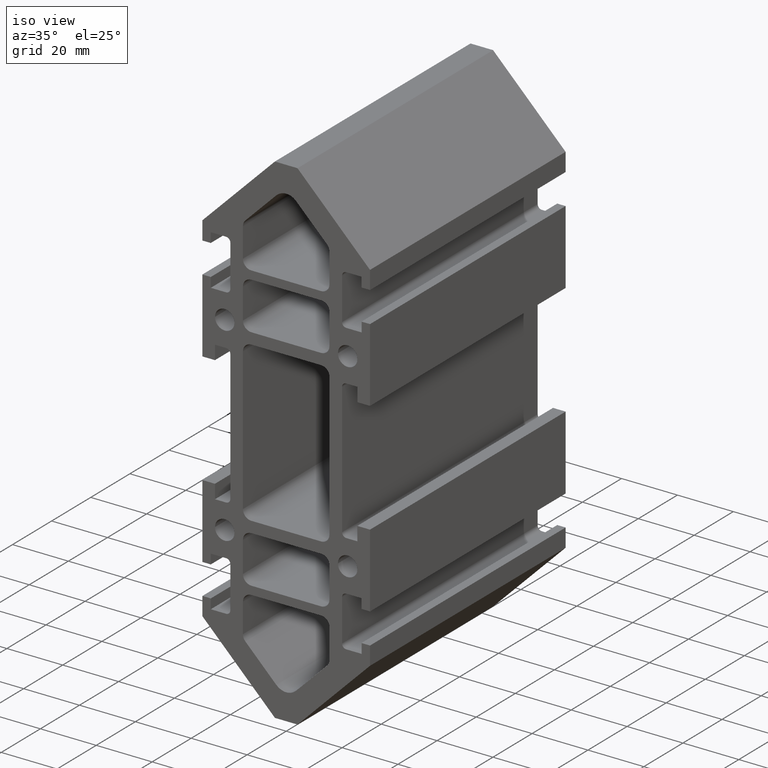
[diagram: clean part render]
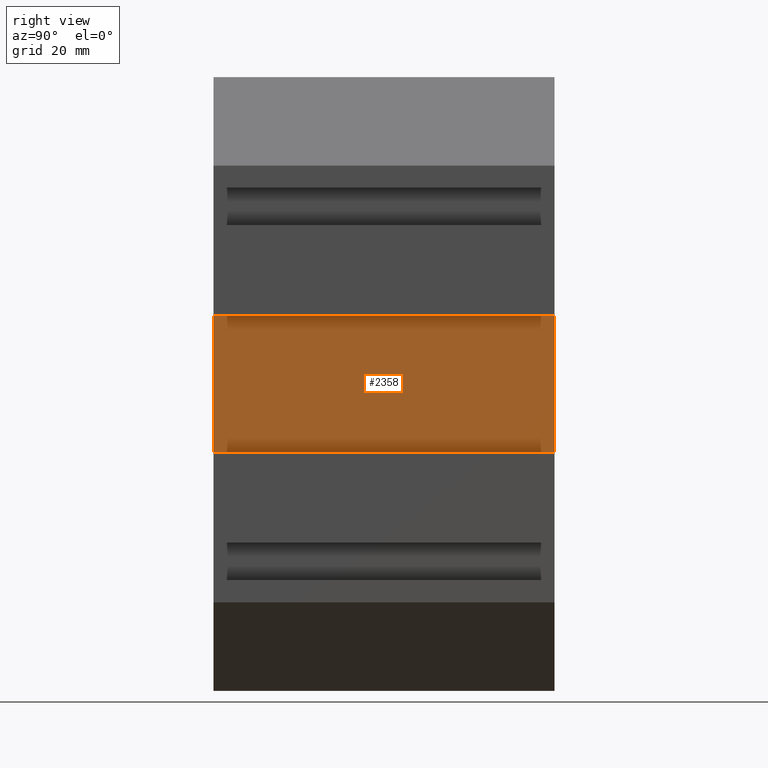
[diagram: tour spotlight — one face highlighted and labeled with its STEP entity id]
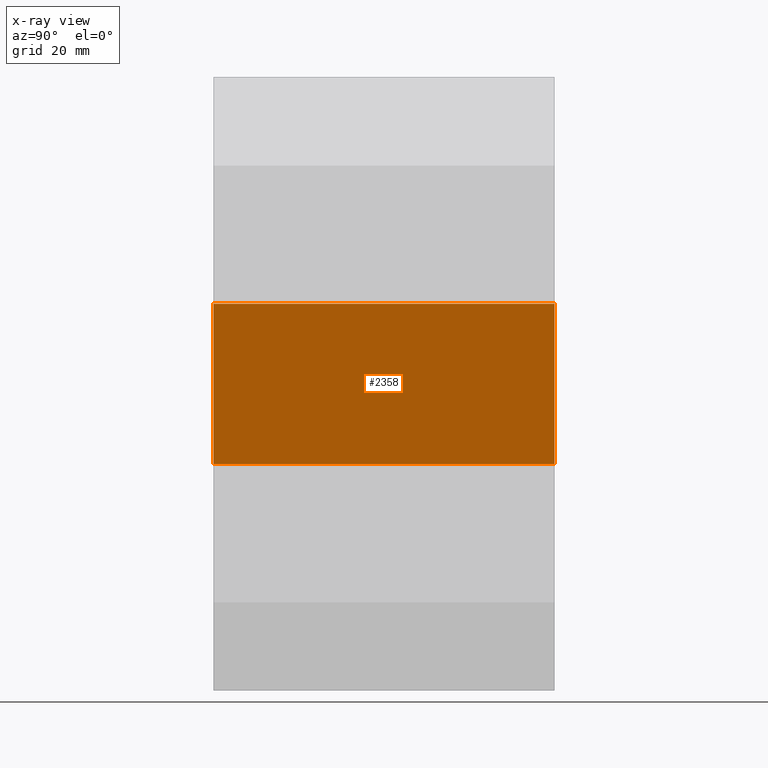
[diagram: x-ray of the same camera — body ghosted, this tour face saturated]
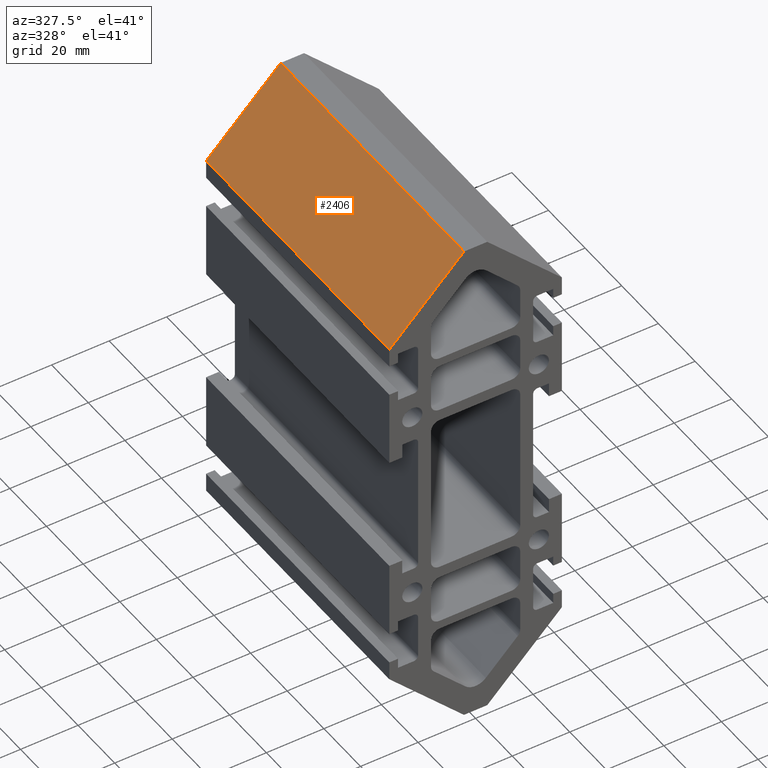
[diagram: tour spotlight — one face highlighted and labeled with its STEP entity id]
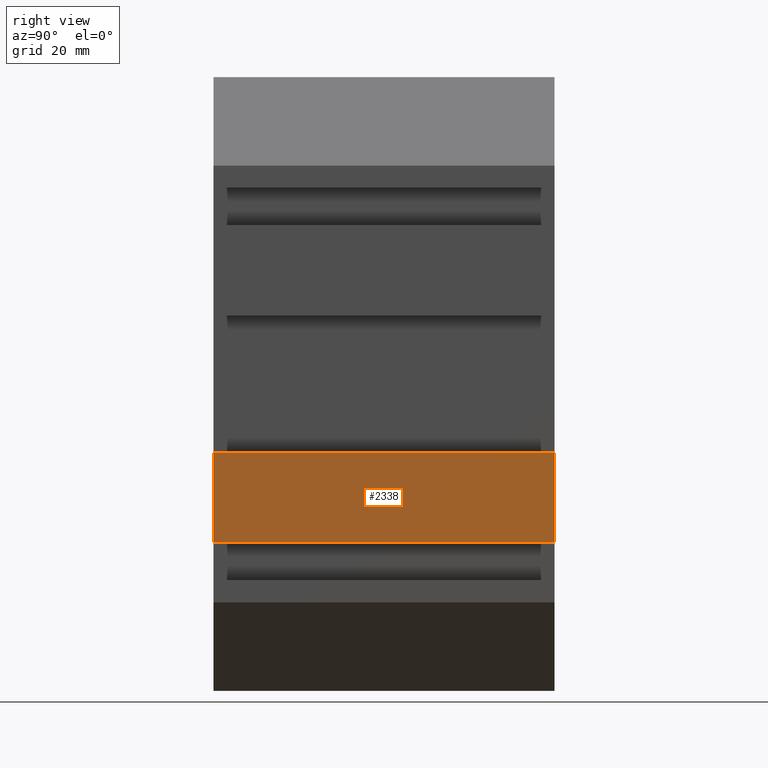
[diagram: tour spotlight — one face highlighted and labeled with its STEP entity id]
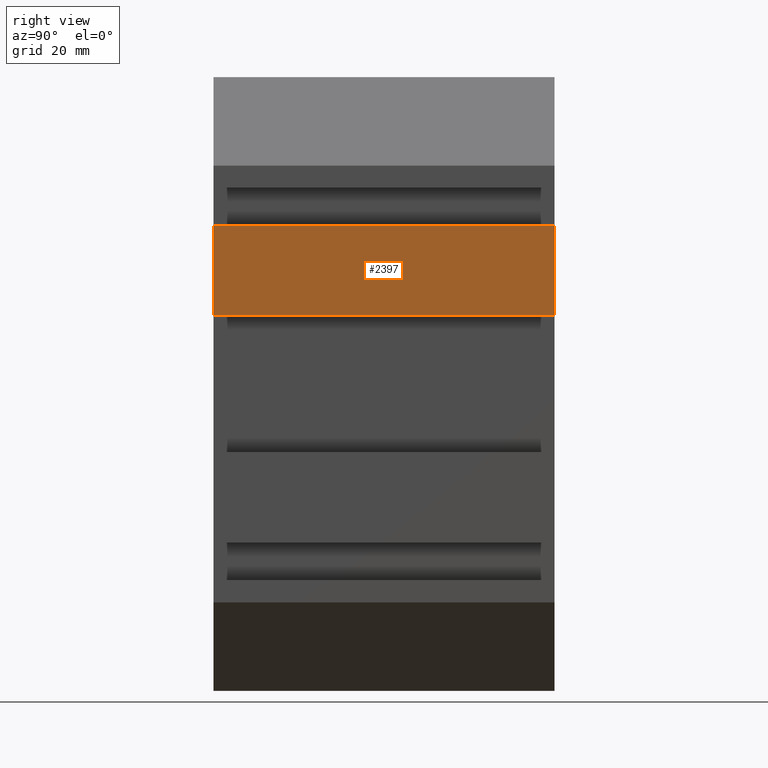
[diagram: tour spotlight — one face highlighted and labeled with its STEP entity id]
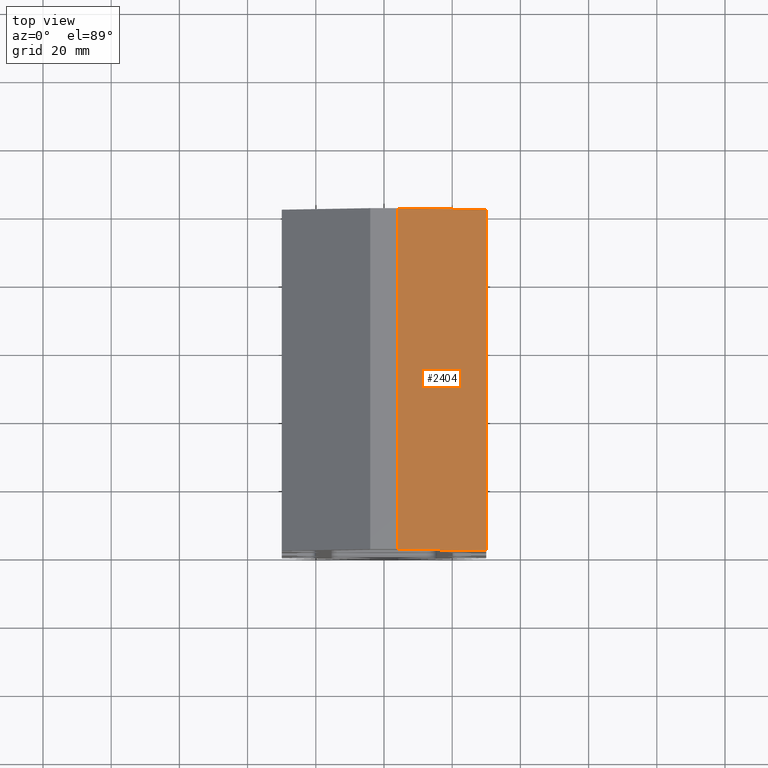
[diagram: tour spotlight — one face highlighted and labeled with its STEP entity id]
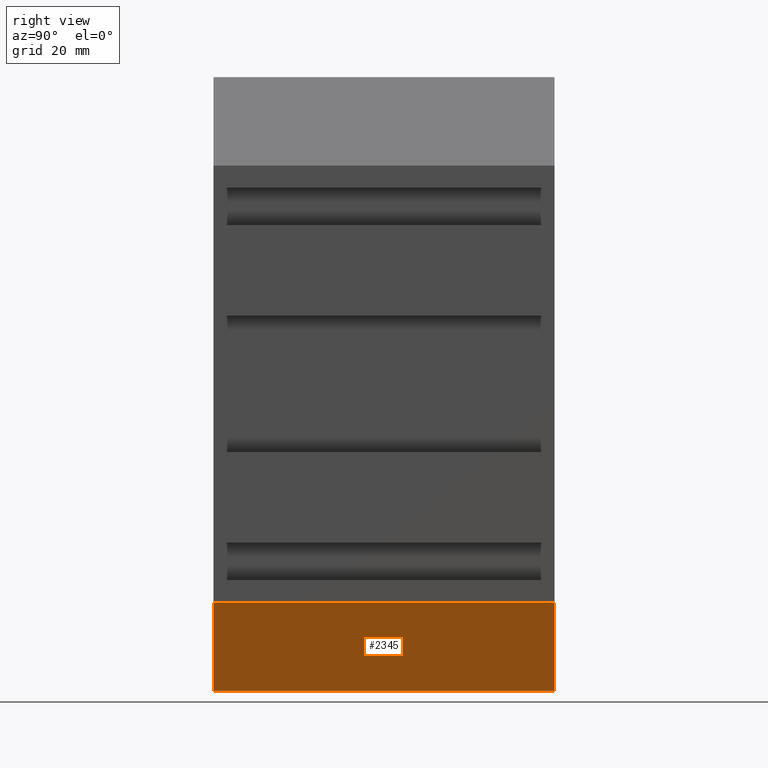
[diagram: tour spotlight — one face highlighted and labeled with its STEP entity id]
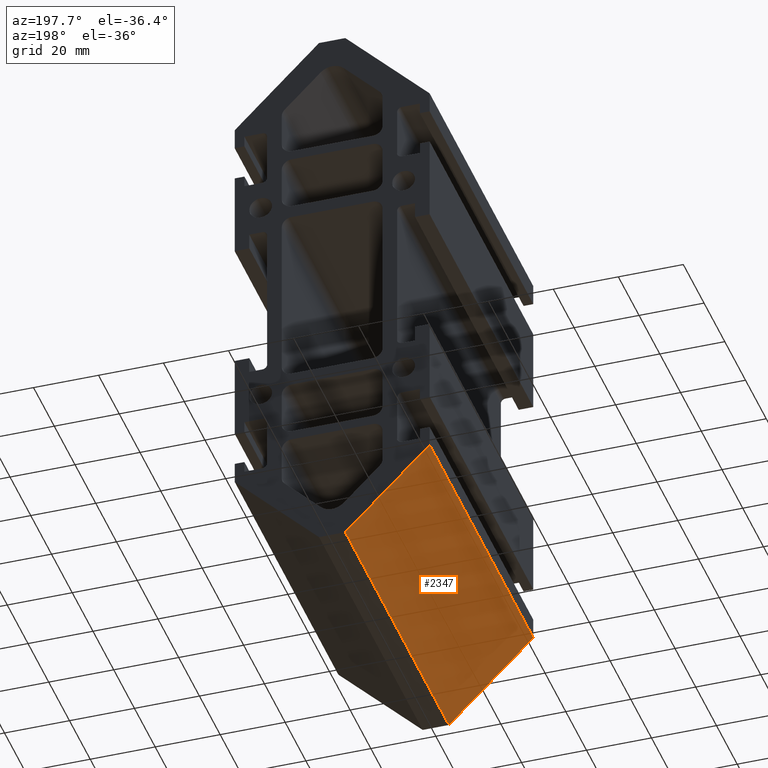
[diagram: tour spotlight — one face highlighted and labeled with its STEP entity id]
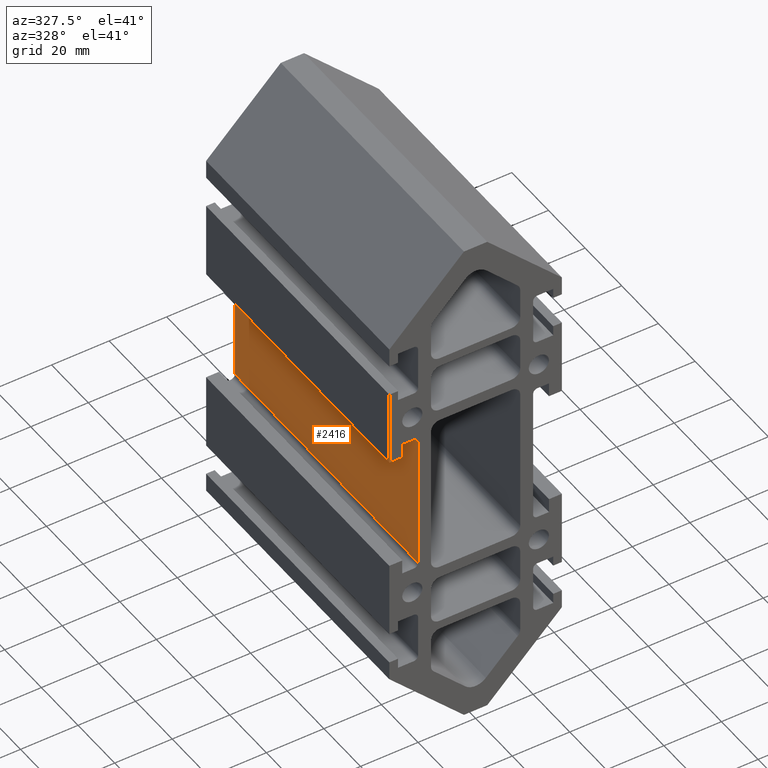
[diagram: tour spotlight — one face highlighted and labeled with its STEP entity id]
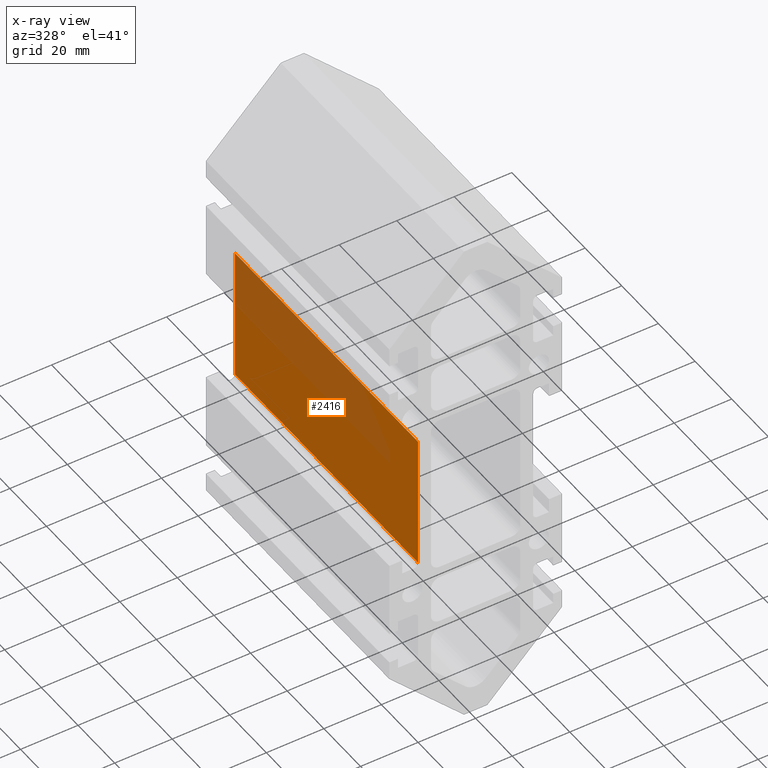
[diagram: x-ray of the same camera — body ghosted, this tour face saturated]
A machine part: a face-by-face anatomy tour. The part has 118 B-rep faces; the first image is the clean iso view, then the 8 largest visible faces are spotlighted one at a time (largest first), each with its STEP entity span.

Face 1 — right view, entity #2358. An x-ray twin of the same camera follows (body ghosted, this face saturated) — the face is partly hidden behind the body. In plain terms, the highlighted planar face has unit normal (1, 0, 0).
Definition (entity closure, byte-faithful):
#70=PLANE('',#2539);
#170=FACE_OUTER_BOUND('',#288,.T.);
#288=EDGE_LOOP('',(#1795,#1796,#1797,#1798));
#368=LINE('',#3307,#640);
#499=LINE('',#3646,#771);
#501=LINE('',#3651,#773);
#502=LINE('',#3652,#774);
#640=VECTOR('',#2645,10.);
#771=VECTOR('',#2962,10.);
#773=VECTOR('',#2968,10.);
#774=VECTOR('',#2969,10.);
#988=VERTEX_POINT('',#3301);
#990=VERTEX_POINT('',#3305);
#1104=VERTEX_POINT('',#3643);
#1105=VERTEX_POINT('',#3645);
#1222=EDGE_CURVE('',#988,#990,#368,.T.);
#1390=EDGE_CURVE('',#1104,#1105,#499,.T.);
#1393=EDGE_CURVE('',#988,#1104,#501,.T.);
#1394=EDGE_CURVE('',#1105,#990,#502,.T.);
#1795=ORIENTED_EDGE('',*,*,#1390,.F.);
#1796=ORIENTED_EDGE('',*,*,#1393,.F.);
#1797=ORIENTED_EDGE('',*,*,#1222,.T.);
#1798=ORIENTED_EDGE('',*,*,#1394,.F.);
#2358=ADVANCED_FACE('',(#170),#70,.T.);
#2539=AXIS2_PLACEMENT_3D('',#3650,#2966,#2967);
#2645=DIRECTION('',(0.,1.,0.));
#2962=DIRECTION('',(0.,1.,0.));
#2966=DIRECTION('center_axis',(1.,0.,1.77635683940025E-16));
#2967=DIRECTION('ref_axis',(1.77635683940025E-16,0.,-1.));
#2968=DIRECTION('',(-1.77635683940025E-16,0.,1.));
#2969=DIRECTION('',(1.77635683940025E-16,0.,-1.));
#3301=CARTESIAN_POINT('',(19.9999999999998,0.,-23.5000000000003));
#3305=CARTESIAN_POINT('',(19.9999999999998,100.,-23.5000000000003));
#3307=CARTESIAN_POINT('',(19.9999999999998,0.,-23.5000000000003));
#3643=CARTESIAN_POINT('',(20.,0.,23.5));
#3645=CARTESIAN_POINT('',(20.,100.,23.5));
#3646=CARTESIAN_POINT('',(20.,0.,23.5));
#3650=CARTESIAN_POINT('Origin',(20.,0.,25.));
#3651=CARTESIAN_POINT('',(20.,0.,0.));
#3652=CARTESIAN_POINT('',(20.,100.,0.));

Face 2 — auxiliary view, entity #2406. In plain terms, the highlighted planar face has unit normal (-0.7071, 0, 0.7071).
Definition (entity closure, byte-faithful):
#100=PLANE('',#2623);
#218=FACE_OUTER_BOUND('',#336,.T.);
#336=EDGE_LOOP('',(#1987,#1988,#1989,#1990));
#608=LINE('',#3937,#880);
#609=LINE('',#3940,#881);
#610=LINE('',#3942,#882);
#611=LINE('',#3943,#883);
#880=VECTOR('',#3241,10.);
#881=VECTOR('',#3244,10.);
#882=VECTOR('',#3245,10.);
#883=VECTOR('',#3246,10.);
#1201=VERTEX_POINT('',#3933);
#1202=VERTEX_POINT('',#3935);
#1203=VERTEX_POINT('',#3939);
#1204=VERTEX_POINT('',#3941);
#1536=EDGE_CURVE('',#1201,#1202,#608,.T.);
#1537=EDGE_CURVE('',#1201,#1203,#609,.T.);
#1538=EDGE_CURVE('',#1204,#1202,#610,.T.);
#1539=EDGE_CURVE('',#1203,#1204,#611,.T.);
#1987=ORIENTED_EDGE('',*,*,#1537,.F.);
#1988=ORIENTED_EDGE('',*,*,#1536,.T.);
#1989=ORIENTED_EDGE('',*,*,#1538,.F.);
#1990=ORIENTED_EDGE('',*,*,#1539,.F.);
#2406=ADVANCED_FACE('',(#218),#100,.T.);
#2623=AXIS2_PLACEMENT_3D('',#3938,#3242,#3243);
#3241=DIRECTION('',(0.,1.,0.));
#3242=DIRECTION('center_axis',(-0.707106781186546,0.,0.707106781186549));
#3243=DIRECTION('ref_axis',(0.707106781186549,0.,0.707106781186546));
#3244=DIRECTION('',(-0.707106781186549,0.,-0.707106781186546));
#3245=DIRECTION('',(0.707106781186549,0.,0.707106781186546));
#3246=DIRECTION('',(0.,1.,0.));
#3933=CARTESIAN_POINT('',(-4.04520189781079,0.,90.));
#3935=CARTESIAN_POINT('',(-4.04520189781079,100.,90.));
#3937=CARTESIAN_POINT('',(-4.04520189781079,0.,90.));
#3938=CARTESIAN_POINT('Origin',(-30.,0.,64.0452018978109));
#3939=CARTESIAN_POINT('',(-30.,0.,64.0452018978109));
#3940=CARTESIAN_POINT('',(-4.04520189781079,0.,90.));
#3941=CARTESIAN_POINT('',(-30.,100.,64.0452018978109));
#3942=CARTESIAN_POINT('',(-4.04520189781079,100.,90.));
#3943=CARTESIAN_POINT('',(-30.,0.,64.0452018978109));

Face 3 — right view, entity #2338. In plain terms, the highlighted planar face has unit normal (-1, 0, 0).
Definition (entity closure, byte-faithful):
#51=PLANE('',#2517);
#150=FACE_OUTER_BOUND('',#268,.T.);
#268=EDGE_LOOP('',(#1715,#1716,#1717,#1718));
#443=LINE('',#3534,#715);
#445=LINE('',#3538,#717);
#446=LINE('',#3540,#718);
#447=LINE('',#3541,#719);
#715=VECTOR('',#2864,10.);
#717=VECTOR('',#2868,10.);
#718=VECTOR('',#2869,10.);
#719=VECTOR('',#2870,10.);
#1069=VERTEX_POINT('',#3531);
#1070=VERTEX_POINT('',#3533);
#1071=VERTEX_POINT('',#3537);
#1072=VERTEX_POINT('',#3539);
#1333=EDGE_CURVE('',#1069,#1070,#443,.T.);
#1335=EDGE_CURVE('',#1069,#1071,#445,.T.);
#1336=EDGE_CURVE('',#1071,#1072,#446,.T.);
#1337=EDGE_CURVE('',#1072,#1070,#447,.T.);
#1715=ORIENTED_EDGE('',*,*,#1335,.T.);
#1716=ORIENTED_EDGE('',*,*,#1336,.T.);
#1717=ORIENTED_EDGE('',*,*,#1337,.T.);
#1718=ORIENTED_EDGE('',*,*,#1333,.F.);
#2338=ADVANCED_FACE('',(#150),#51,.F.);
#2517=AXIS2_PLACEMENT_3D('',#3536,#2866,#2867);
#2864=DIRECTION('',(0.,1.,0.));
#2866=DIRECTION('center_axis',(-1.,0.,7.13917974225302E-15));
#2867=DIRECTION('ref_axis',(7.13917974225302E-15,0.,1.));
#2868=DIRECTION('',(-7.13917974225302E-15,0.,-1.));
#2869=DIRECTION('',(0.,1.,0.));
#2870=DIRECTION('',(7.13917974225302E-15,0.,1.));
#3531=CARTESIAN_POINT('',(29.9999999999999,0.,-20.0000000000003));
#3533=CARTESIAN_POINT('',(29.9999999999999,100.,-20.0000000000003));
#3534=CARTESIAN_POINT('',(29.9999999999999,0.,-20.0000000000003));
#3536=CARTESIAN_POINT('Origin',(29.9999999999997,0.,-46.5000000000003));
#3537=CARTESIAN_POINT('',(29.9999999999997,0.,-46.5000000000003));
#3538=CARTESIAN_POINT('',(29.9999999999999,0.,-20.0000000000003));
#3539=CARTESIAN_POINT('',(29.9999999999997,100.,-46.5000000000003));
#3540=CARTESIAN_POINT('',(29.9999999999997,0.,-46.5000000000003));
#3541=CARTESIAN_POINT('',(29.9999999999999,100.,-20.0000000000003));

Face 4 — right view, entity #2397. In plain terms, the highlighted planar face has unit normal (1, 0, 0).
Definition (entity closure, byte-faithful):
#91=PLANE('',#2614);
#209=FACE_OUTER_BOUND('',#327,.T.);
#327=EDGE_LOOP('',(#1951,#1952,#1953,#1954));
#582=LINE('',#3886,#854);
#583=LINE('',#3889,#855);
#584=LINE('',#3891,#856);
#585=LINE('',#3892,#857);
#854=VECTOR('',#3197,10.);
#855=VECTOR('',#3200,10.);
#856=VECTOR('',#3201,10.);
#857=VECTOR('',#3202,10.);
#1185=VERTEX_POINT('',#3882);
#1186=VERTEX_POINT('',#3884);
#1187=VERTEX_POINT('',#3888);
#1188=VERTEX_POINT('',#3890);
#1510=EDGE_CURVE('',#1185,#1186,#582,.T.);
#1511=EDGE_CURVE('',#1185,#1187,#583,.T.);
#1512=EDGE_CURVE('',#1188,#1186,#584,.T.);
#1513=EDGE_CURVE('',#1187,#1188,#585,.T.);
#1951=ORIENTED_EDGE('',*,*,#1511,.F.);
#1952=ORIENTED_EDGE('',*,*,#1510,.T.);
#1953=ORIENTED_EDGE('',*,*,#1512,.F.);
#1954=ORIENTED_EDGE('',*,*,#1513,.F.);
#2397=ADVANCED_FACE('',(#209),#91,.T.);
#2614=AXIS2_PLACEMENT_3D('',#3887,#3198,#3199);
#3197=DIRECTION('',(0.,1.,0.));
#3198=DIRECTION('center_axis',(1.,0.,1.67580833905684E-16));
#3199=DIRECTION('ref_axis',(1.67580833905684E-16,0.,-1.));
#3200=DIRECTION('',(-1.67580833905684E-16,0.,1.));
#3201=DIRECTION('',(1.67580833905684E-16,0.,-1.));
#3202=DIRECTION('',(0.,1.,0.));
#3882=CARTESIAN_POINT('',(30.,0.,20.));
#3884=CARTESIAN_POINT('',(30.,100.,20.));
#3886=CARTESIAN_POINT('',(30.,0.,20.));
#3887=CARTESIAN_POINT('Origin',(30.,0.,46.5));
#3888=CARTESIAN_POINT('',(30.,0.,46.5));
#3889=CARTESIAN_POINT('',(30.,0.,20.));
#3890=CARTESIAN_POINT('',(30.,100.,46.5));
#3891=CARTESIAN_POINT('',(30.,100.,20.));
#3892=CARTESIAN_POINT('',(30.,0.,46.5));

Face 5 — top view, entity #2404. In plain terms, the highlighted planar face has unit normal (0.7071, 0, 0.7071).
Definition (entity closure, byte-faithful):
#98=PLANE('',#2621);
#216=FACE_OUTER_BOUND('',#334,.T.);
#334=EDGE_LOOP('',(#1979,#1980,#1981,#1982));
#602=LINE('',#3925,#874);
#603=LINE('',#3928,#875);
#604=LINE('',#3930,#876);
#605=LINE('',#3931,#877);
#874=VECTOR('',#3231,10.);
#875=VECTOR('',#3234,10.);
#876=VECTOR('',#3235,10.);
#877=VECTOR('',#3236,10.);
#1197=VERTEX_POINT('',#3921);
#1198=VERTEX_POINT('',#3923);
#1199=VERTEX_POINT('',#3927);
#1200=VERTEX_POINT('',#3929);
#1530=EDGE_CURVE('',#1197,#1198,#602,.T.);
#1531=EDGE_CURVE('',#1197,#1199,#603,.T.);
#1532=EDGE_CURVE('',#1200,#1198,#604,.T.);
#1533=EDGE_CURVE('',#1199,#1200,#605,.T.);
#1979=ORIENTED_EDGE('',*,*,#1531,.F.);
#1980=ORIENTED_EDGE('',*,*,#1530,.T.);
#1981=ORIENTED_EDGE('',*,*,#1532,.F.);
#1982=ORIENTED_EDGE('',*,*,#1533,.F.);
#2404=ADVANCED_FACE('',(#216),#98,.T.);
#2621=AXIS2_PLACEMENT_3D('',#3926,#3232,#3233);
#3231=DIRECTION('',(0.,1.,0.));
#3232=DIRECTION('center_axis',(0.707106781186548,0.,0.707106781186547));
#3233=DIRECTION('ref_axis',(0.707106781186547,0.,-0.707106781186548));
#3234=DIRECTION('',(-0.707106781186547,0.,0.707106781186548));
#3235=DIRECTION('',(0.707106781186547,0.,-0.707106781186548));
#3236=DIRECTION('',(0.,1.,0.));
#3921=CARTESIAN_POINT('',(30.,0.,64.0452018978107));
#3923=CARTESIAN_POINT('',(30.,100.,64.0452018978107));
#3925=CARTESIAN_POINT('',(30.,0.,64.0452018978107));
#3926=CARTESIAN_POINT('Origin',(4.04520189781078,0.,90.));
#3927=CARTESIAN_POINT('',(4.04520189781078,0.,90.));
#3928=CARTESIAN_POINT('',(30.,0.,64.0452018978107));
#3929=CARTESIAN_POINT('',(4.04520189781078,100.,90.));
#3930=CARTESIAN_POINT('',(30.,100.,64.0452018978107));
#3931=CARTESIAN_POINT('',(4.04520189781078,0.,90.));

Face 6 — right view, entity #2345. In plain terms, the highlighted planar face has unit normal (-0.7071, 0, 0.7071).
Definition (entity closure, byte-faithful):
#58=PLANE('',#2524);
#157=FACE_OUTER_BOUND('',#275,.T.);
#275=EDGE_LOOP('',(#1743,#1744,#1745,#1746));
#463=LINE('',#3573,#735);
#465=LINE('',#3577,#737);
#466=LINE('',#3579,#738);
#467=LINE('',#3580,#739);
#735=VECTOR('',#2898,10.);
#737=VECTOR('',#2902,10.);
#738=VECTOR('',#2903,10.);
#739=VECTOR('',#2904,10.);
#1081=VERTEX_POINT('',#3570);
#1082=VERTEX_POINT('',#3572);
#1083=VERTEX_POINT('',#3576);
#1084=VERTEX_POINT('',#3578);
#1353=EDGE_CURVE('',#1081,#1082,#463,.T.);
#1355=EDGE_CURVE('',#1081,#1083,#465,.T.);
#1356=EDGE_CURVE('',#1083,#1084,#466,.T.);
#1357=EDGE_CURVE('',#1084,#1082,#467,.T.);
#1743=ORIENTED_EDGE('',*,*,#1355,.T.);
#1744=ORIENTED_EDGE('',*,*,#1356,.T.);
#1745=ORIENTED_EDGE('',*,*,#1357,.T.);
#1746=ORIENTED_EDGE('',*,*,#1353,.F.);
#2345=ADVANCED_FACE('',(#157),#58,.F.);
#2524=AXIS2_PLACEMENT_3D('',#3575,#2900,#2901);
#2898=DIRECTION('',(0.,1.,0.));
#2900=DIRECTION('center_axis',(-0.707106781186543,0.,0.707106781186552));
#2901=DIRECTION('ref_axis',(0.707106781186552,0.,0.707106781186543));
#2902=DIRECTION('',(-0.707106781186552,0.,-0.707106781186543));
#2903=DIRECTION('',(0.,1.,0.));
#2904=DIRECTION('',(0.707106781186552,0.,0.707106781186543));
#3570=CARTESIAN_POINT('',(29.9999999999995,0.,-64.0452018978111));
#3572=CARTESIAN_POINT('',(29.9999999999995,100.,-64.0452018978111));
#3573=CARTESIAN_POINT('',(29.9999999999995,0.,-64.0452018978111));
#3575=CARTESIAN_POINT('Origin',(4.04520189781015,0.,-90.0000000000002));
#3576=CARTESIAN_POINT('',(4.04520189781015,0.,-90.0000000000002));
#3577=CARTESIAN_POINT('',(29.9999999999995,0.,-64.0452018978111));
#3578=CARTESIAN_POINT('',(4.04520189781015,100.,-90.0000000000002));
#3579=CARTESIAN_POINT('',(4.04520189781015,0.,-90.0000000000002));
#3580=CARTESIAN_POINT('',(29.9999999999995,100.,-64.0452018978111));

Face 7 — auxiliary view, entity #2347. In plain terms, the highlighted planar face has unit normal (0.7071, 0, 0.7071).
Definition (entity closure, byte-faithful):
#60=PLANE('',#2526);
#159=FACE_OUTER_BOUND('',#277,.T.);
#277=EDGE_LOOP('',(#1751,#1752,#1753,#1754));
#469=LINE('',#3585,#741);
#471=LINE('',#3589,#743);
#472=LINE('',#3591,#744);
#473=LINE('',#3592,#745);
#741=VECTOR('',#2908,10.);
#743=VECTOR('',#2912,10.);
#744=VECTOR('',#2913,10.);
#745=VECTOR('',#2914,10.);
#1085=VERTEX_POINT('',#3582);
#1086=VERTEX_POINT('',#3584);
#1087=VERTEX_POINT('',#3588);
#1088=VERTEX_POINT('',#3590);
#1359=EDGE_CURVE('',#1085,#1086,#469,.T.);
#1361=EDGE_CURVE('',#1085,#1087,#471,.T.);
#1362=EDGE_CURVE('',#1087,#1088,#472,.T.);
#1363=EDGE_CURVE('',#1088,#1086,#473,.T.);
#1751=ORIENTED_EDGE('',*,*,#1361,.T.);
#1752=ORIENTED_EDGE('',*,*,#1362,.T.);
#1753=ORIENTED_EDGE('',*,*,#1363,.T.);
#1754=ORIENTED_EDGE('',*,*,#1359,.F.);
#2347=ADVANCED_FACE('',(#159),#60,.F.);
#2526=AXIS2_PLACEMENT_3D('',#3587,#2910,#2911);
#2908=DIRECTION('',(0.,1.,0.));
#2910=DIRECTION('center_axis',(0.707106781186551,0.,0.707106781186544));
#2911=DIRECTION('ref_axis',(0.707106781186544,0.,-0.707106781186551));
#2912=DIRECTION('',(-0.707106781186544,0.,0.707106781186551));
#2913=DIRECTION('',(0.,1.,0.));
#2914=DIRECTION('',(0.707106781186544,0.,-0.707106781186551));
#3582=CARTESIAN_POINT('',(-4.04520189781142,0.,-90.0000000000001));
#3584=CARTESIAN_POINT('',(-4.04520189781142,100.,-90.0000000000001));
#3585=CARTESIAN_POINT('',(-4.04520189781142,0.,-90.0000000000001));
#3587=CARTESIAN_POINT('Origin',(-30.0000000000005,0.,-64.0452018978108));
#3588=CARTESIAN_POINT('',(-30.0000000000004,0.,-64.0452018978108));
#3589=CARTESIAN_POINT('',(-4.04520189781142,0.,-90.0000000000001));
#3590=CARTESIAN_POINT('',(-30.0000000000004,100.,-64.0452018978108));
#3591=CARTESIAN_POINT('',(-30.0000000000004,0.,-64.0452018978108));
#3592=CARTESIAN_POINT('',(-4.04520189781142,100.,-90.0000000000001));

Face 8 — auxiliary view, entity #2416. An x-ray twin of the same camera follows (body ghosted, this face saturated) — the face is partly hidden behind the body. In plain terms, the highlighted planar face has unit normal (-1, 0, 0).
Definition (entity closure, byte-faithful):
#110=PLANE('',#2633);
#228=FACE_OUTER_BOUND('',#346,.T.);
#346=EDGE_LOOP('',(#2027,#2028,#2029,#2030));
#369=LINE('',#3313,#641);
#504=LINE('',#3661,#776);
#637=LINE('',#3993,#909);
#638=LINE('',#3994,#910);
#641=VECTOR('',#2650,10.);
#776=VECTOR('',#2977,10.);
#909=VECTOR('',#3292,10.);
#910=VECTOR('',#3293,10.);
#991=VERTEX_POINT('',#3309);
#993=VERTEX_POINT('',#3312);
#1107=VERTEX_POINT('',#3654);
#1110=VERTEX_POINT('',#3659);
#1224=EDGE_CURVE('',#993,#991,#369,.T.);
#1398=EDGE_CURVE('',#1110,#1107,#504,.T.);
#1565=EDGE_CURVE('',#1110,#993,#637,.T.);
#1566=EDGE_CURVE('',#1107,#991,#638,.T.);
#2027=ORIENTED_EDGE('',*,*,#1398,.F.);
#2028=ORIENTED_EDGE('',*,*,#1565,.T.);
#2029=ORIENTED_EDGE('',*,*,#1224,.T.);
#2030=ORIENTED_EDGE('',*,*,#1566,.F.);
#2416=ADVANCED_FACE('',(#228),#110,.T.);
#2633=AXIS2_PLACEMENT_3D('',#3992,#3290,#3291);
#2650=DIRECTION('',(0.,-1.,0.));
#2977=DIRECTION('',(0.,-1.,0.));
#3290=DIRECTION('center_axis',(-1.,0.,8.88178419700125E-17));
#3291=DIRECTION('ref_axis',(8.88178419700125E-17,0.,1.));
#3292=DIRECTION('',(-6.88278106637732E-15,0.,-1.));
#3293=DIRECTION('',(-8.88178419700125E-17,0.,-1.));
#3309=CARTESIAN_POINT('',(-20.0000000000002,0.,-23.5));
#3312=CARTESIAN_POINT('',(-20.0000000000002,100.,-23.5));
#3313=CARTESIAN_POINT('',(-20.0000000000002,0.,-23.5));
#3654=CARTESIAN_POINT('',(-20.,0.,23.5));
#3659=CARTESIAN_POINT('',(-20.,100.,23.5));
#3661=CARTESIAN_POINT('',(-20.,0.,23.5));
#3992=CARTESIAN_POINT('Origin',(-20.,0.,0.));
#3993=CARTESIAN_POINT('',(-20.0000000000002,100.,-25.));
#3994=CARTESIAN_POINT('',(-20.,0.,25.));